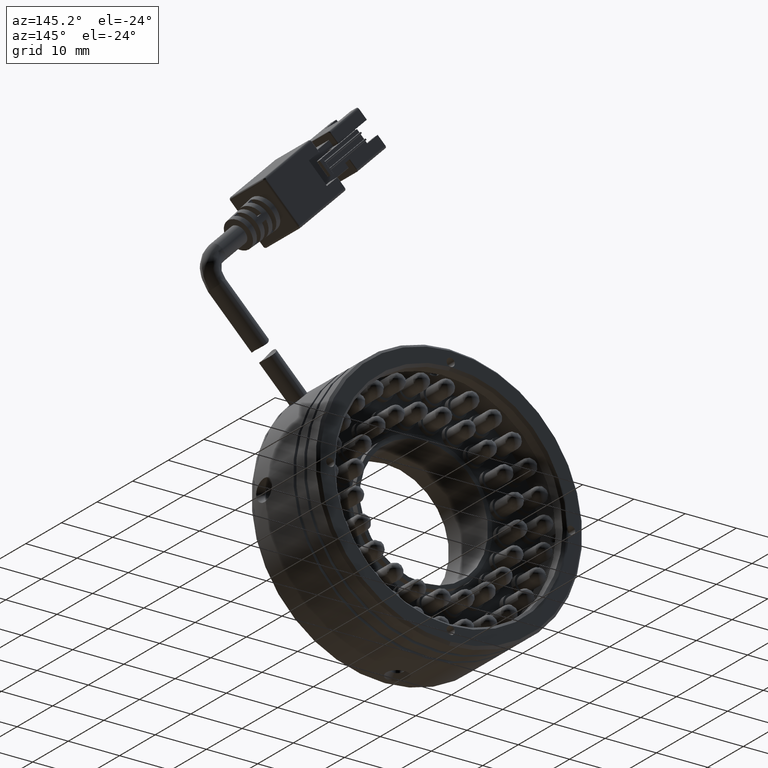
[diagram: clean part render]
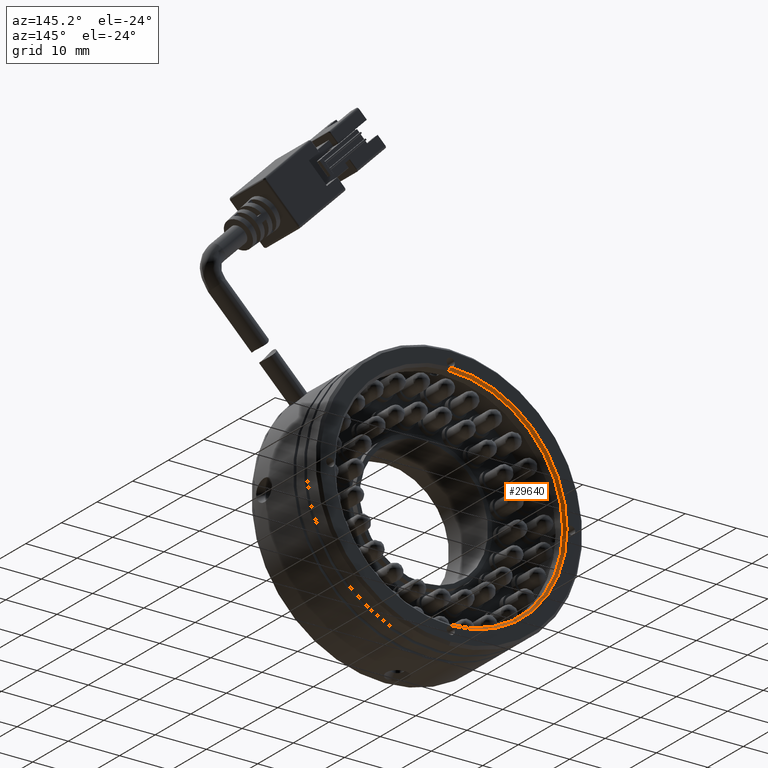
[diagram: same view with one face highlighted and labeled with its STEP entity id]
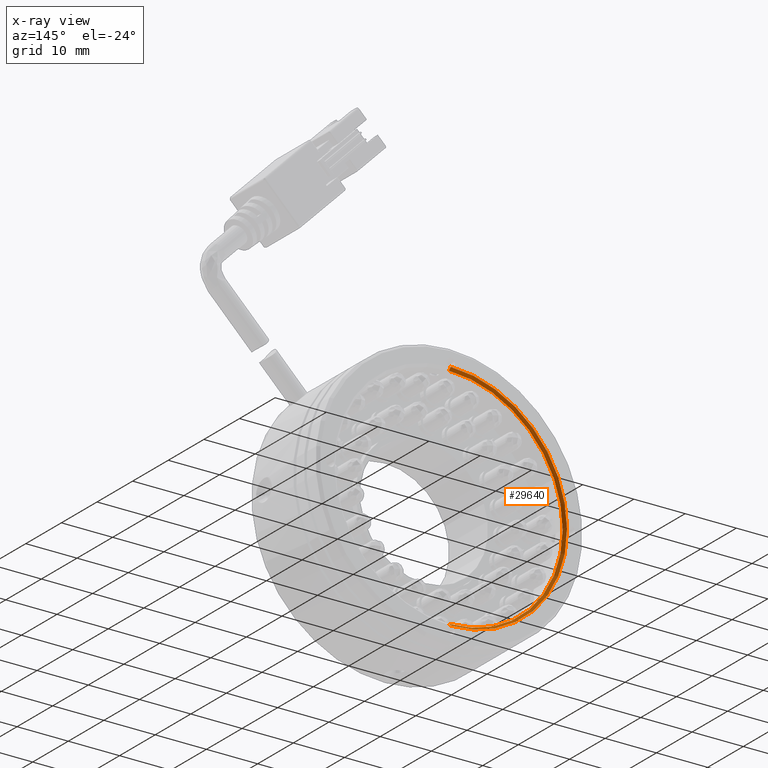
[diagram: x-ray of the same camera — body ghosted, the highlighted face saturated]
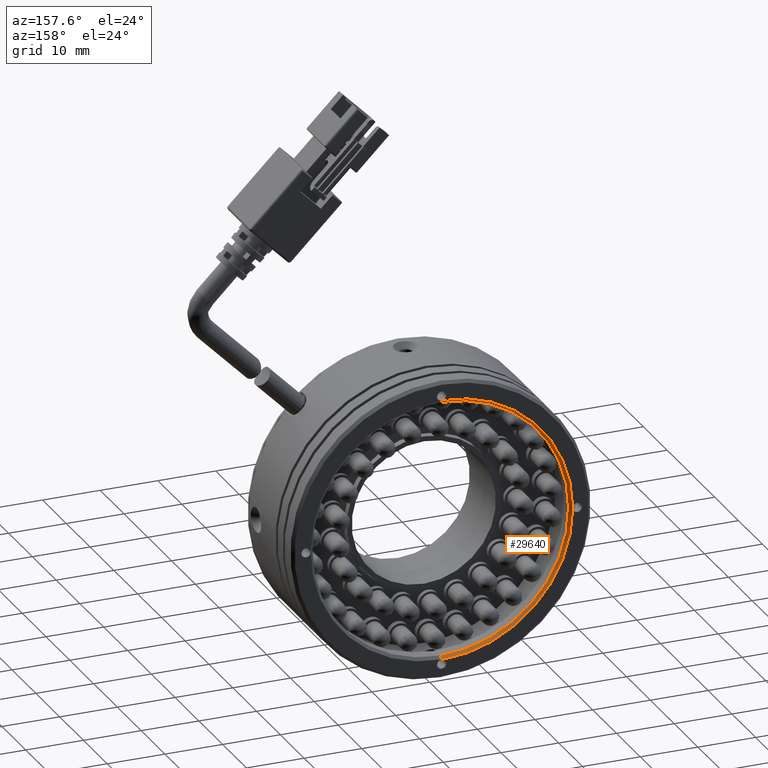
[diagram: same view with one face highlighted and labeled with its STEP entity id]
A machine part, auxiliary view. The second image highlights one B-rep face of the part: STEP entity #29640.
The next image is the same camera in x-ray: the body ghosted, the highlighted face saturated — about 0% of this face is hidden behind the body in this view.
A second angle (auxiliary view) of the same face is appended — the face is thin or edge-on in the first view.
In plain terms, the highlighted conical surface has half-angle 45 deg.
Its self-contained STEP definition (entity closure, byte-faithful):
#475 = EDGE_CURVE ( 'NONE', #21734, #6528, #3722, .T. ) ;
#850 = DIRECTION ( 'NONE',  ( 0.0000000000000000000, 1.000000000000000000, 0.0000000000000000000 ) ) ;
#1611 = VERTEX_POINT ( 'NONE', #47847 ) ;
#1715 = DIRECTION ( 'NONE',  ( -0.0000000000000000000, 1.000000000000000000, -0.0000000000000000000 ) ) ;
#1718 = AXIS2_PLACEMENT_3D ( 'NONE', #36171, #13571, #39946 ) ;
#1889 = ORIENTED_EDGE ( 'NONE', *, *, #24665, .T. ) ;
#3101 = DIRECTION ( 'NONE',  ( 0.0000000000000000000, 1.000000000000000000, 0.0000000000000000000 ) ) ;
#3362 = CARTESIAN_POINT ( 'NONE',  ( -0.8432364767453738300, 12.48007617023817100, 22.19999999999999600 ) ) ;
#3722 = LINE ( 'NONE', #47272, #13759 ) ;
#4410 = CIRCLE ( 'NONE', #46255, 22.19999999999999600 ) ;
#6528 = VERTEX_POINT ( 'NONE', #39749 ) ;
#6608 = CARTESIAN_POINT ( 'NONE',  ( -0.8432364767453765000, 12.48007617023817100, -22.19999999999999600 ) ) ;
#7777 = VERTEX_POINT ( 'NONE', #32747 ) ;
#10644 = VERTEX_POINT ( 'NONE', #6608 ) ;
#13571 = DIRECTION ( 'NONE',  ( 0.0000000000000000000, 1.000000000000000000, 0.0000000000000000000 ) ) ;
#13759 = VECTOR ( 'NONE', #21583, 1000.000000000000000 ) ;
#16025 = DIRECTION ( 'NONE',  ( 0.0000000000000000000, 0.0000000000000000000, 1.000000000000000000 ) ) ;
#16714 = EDGE_LOOP ( 'NONE', ( #17788, #17083, #1889, #21983, #39276 ) ) ;
#17083 = ORIENTED_EDGE ( 'NONE', *, *, #20370, .T. ) ;
#17788 = ORIENTED_EDGE ( 'NONE', *, *, #48207, .F. ) ;
#18359 = CARTESIAN_POINT ( 'NONE',  ( -0.8432364767453737200, 12.98007617023817100, -22.69999999999999600 ) ) ;
#19624 = CARTESIAN_POINT ( 'NONE',  ( -0.8432364767453765000, 12.98007617023817100, 0.0000000000000000000 ) ) ;
#19767 = CIRCLE ( 'NONE', #1718, 22.69999999999999600 ) ;
#20370 = EDGE_CURVE ( 'NONE', #10644, #1611, #47449, .T. ) ;
#20494 = AXIS2_PLACEMENT_3D ( 'NONE', #19624, #850, #16025 ) ;
#21583 = DIRECTION ( 'NONE',  ( 0.0000000000000000000, 0.7071067811865500200, 0.7071067811865450200 ) ) ;
#21734 = VERTEX_POINT ( 'NONE', #3362 ) ;
#21983 = ORIENTED_EDGE ( 'NONE', *, *, #43092, .T. ) ;
#24319 = CARTESIAN_POINT ( 'NONE',  ( -0.8432364767453765000, 12.48007617023817100, 0.0000000000000000000 ) ) ;
#24665 = EDGE_CURVE ( 'NONE', #1611, #7777, #19767, .T. ) ;
#25675 = CARTESIAN_POINT ( 'NONE',  ( -0.8432364767453765000, 12.98007617023817100, 0.0000000000000000000 ) ) ;
#25926 = DIRECTION ( 'NONE',  ( 8.659560562354902000E-017, 0.7071067811865500200, -0.7071067811865450200 ) ) ;
#27421 = VECTOR ( 'NONE', #25926, 1000.000000000000000 ) ;
#28116 = DIRECTION ( 'NONE',  ( 0.0000000000000000000, 0.0000000000000000000, 1.000000000000000000 ) ) ;
#29496 = DIRECTION ( 'NONE',  ( 0.0000000000000000000, 0.0000000000000000000, 1.000000000000000000 ) ) ;
#29640 = ADVANCED_FACE ( 'NONE', ( #41407 ), #36715, .F. ) ;
#29982 = AXIS2_PLACEMENT_3D ( 'NONE', #25675, #3101, #29496 ) ;
#32747 = CARTESIAN_POINT ( 'NONE',  ( -23.54323647674537400, 12.98007617023817100, -8.203657462580361600E-014 ) ) ;
#36171 = CARTESIAN_POINT ( 'NONE',  ( -0.8432364767453765000, 12.98007617023817100, 0.0000000000000000000 ) ) ;
#36715 = CONICAL_SURFACE ( 'NONE', #20494, 22.69999999999999600, 0.7853981633974447300 ) ;
#39276 = ORIENTED_EDGE ( 'NONE', *, *, #475, .F. ) ;
#39749 = CARTESIAN_POINT ( 'NONE',  ( -0.8432364767453791600, 12.98007617023817800, 22.69999999999999900 ) ) ;
#39946 = DIRECTION ( 'NONE',  ( 0.0000000000000000000, 0.0000000000000000000, 1.000000000000000000 ) ) ;
#41407 = FACE_OUTER_BOUND ( 'NONE', #16714, .T. ) ;
#42463 = CIRCLE ( 'NONE', #29982, 22.69999999999999600 ) ;
#43092 = EDGE_CURVE ( 'NONE', #7777, #6528, #42463, .T. ) ;
#46255 = AXIS2_PLACEMENT_3D ( 'NONE', #24319, #1715, #28116 ) ;
#47272 = CARTESIAN_POINT ( 'NONE',  ( -0.8432364767453765000, 12.98007617023817100, 22.69999999999999600 ) ) ;
#47449 = LINE ( 'NONE', #18359, #27421 ) ;
#47847 = CARTESIAN_POINT ( 'NONE',  ( -0.8432364767453737200, 12.98007617023817100, -22.69999999999999600 ) ) ;
#48207 = EDGE_CURVE ( 'NONE', #10644, #21734, #4410, .T. ) ;